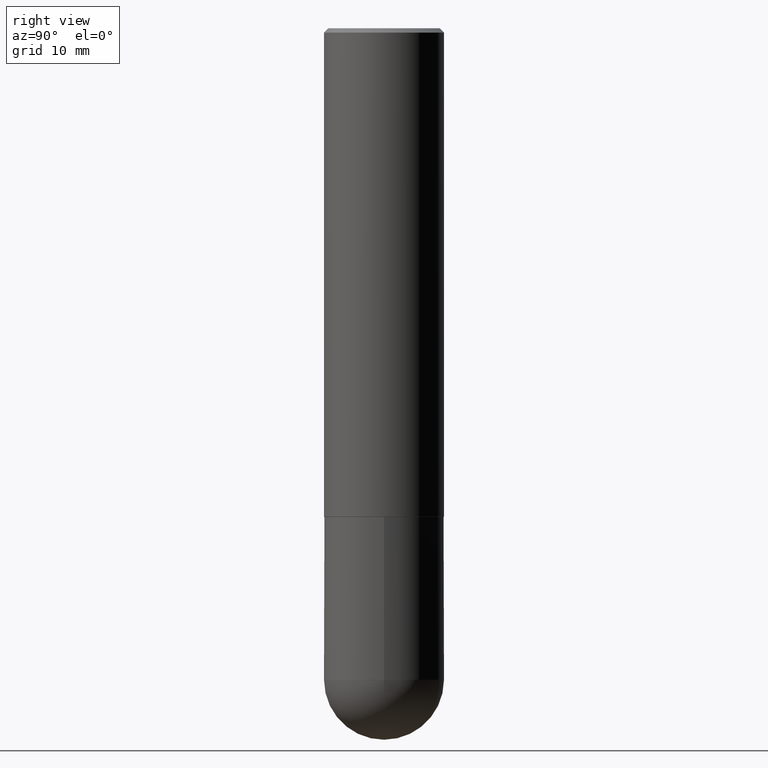
[diagram: clean part render]
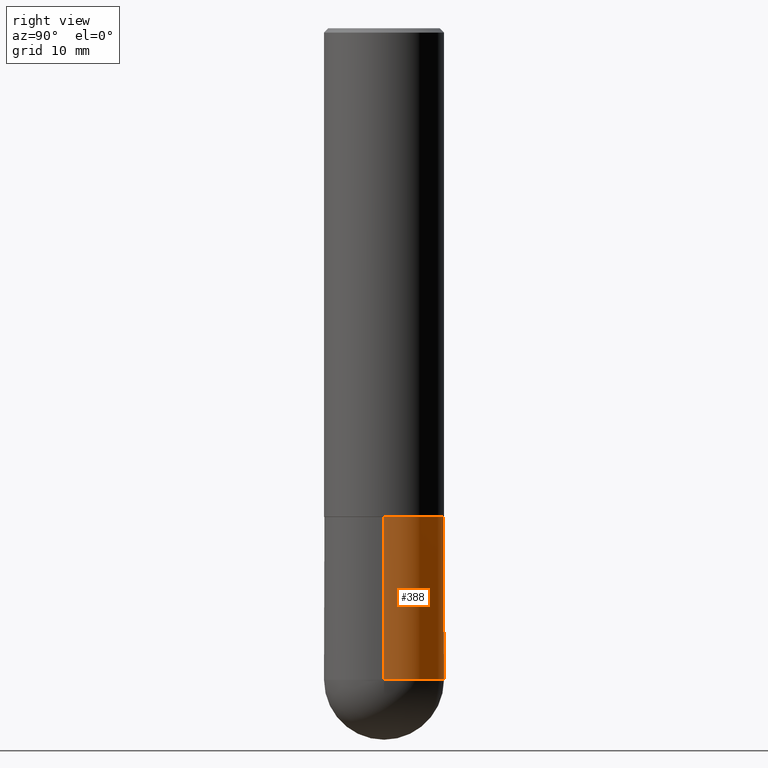
[diagram: same view with one face highlighted and labeled with its STEP entity id]
A machine part, right view. The second image highlights one B-rep face of the part: STEP entity #388.
In plain terms, the highlighted cylindrical surface (partial cylindrical patch) has radius 7.0002 mm, axis along (-0, 0, 1).
Its self-contained STEP definition (entity closure, byte-faithful):
#16 = DIRECTION ( 'NONE',  ( -2.445468806185136597E-29, 3.491481338843145583E-15, 1.000000000000000000 ) ) ;
#20 = ORIENTED_EDGE ( 'NONE', *, *, #136, .T. ) ;
#22 = CARTESIAN_POINT ( 'NONE',  ( 7.317087214986547114E-29, -1.044686131395257581E-14, -2.992100000000000204 ) ) ;
#23 = EDGE_LOOP ( 'NONE', ( #20, #93, #409, #144, #202 ) ) ;
#25 = DIRECTION ( 'NONE',  ( 1.000000000000000000, -6.982962677686264344E-15, 0.000000000000000000 ) ) ;
#30 = CARTESIAN_POINT ( 'NONE',  ( -0.2756000000000000116, -7.182791513470402485E-15, -2.244100000000000428 ) ) ;
#48 = CIRCLE ( 'NONE', #262, 0.2756000000000000671 ) ;
#71 = LINE ( 'NONE', #226, #118 ) ;
#76 = DIRECTION ( 'NONE',  ( -2.445468806185136597E-29, 3.491481338843145583E-15, 1.000000000000000000 ) ) ;
#78 = VECTOR ( 'NONE', #260, 39.37007874015748143 ) ;
#79 = AXIS2_PLACEMENT_3D ( 'NONE', #242, #404, #333 ) ;
#91 = VERTEX_POINT ( 'NONE', #30 ) ;
#93 = ORIENTED_EDGE ( 'NONE', *, *, #150, .T. ) ;
#98 = CIRCLE ( 'NONE', #379, 0.2756000000000000116 ) ;
#106 = DIRECTION ( 'NONE',  ( -2.445468806185136597E-29, 3.491481338843145583E-15, 1.000000000000000000 ) ) ;
#118 = VECTOR ( 'NONE', #354, 39.37007874015748143 ) ;
#136 = EDGE_CURVE ( 'NONE', #244, #319, #48, .T. ) ;
#144 = ORIENTED_EDGE ( 'NONE', *, *, #172, .F. ) ;
#145 = FACE_OUTER_BOUND ( 'NONE', #23, .T. ) ;
#150 = EDGE_CURVE ( 'NONE', #319, #91, #71, .T. ) ;
#164 = CARTESIAN_POINT ( 'NONE',  ( 0.2756000000000000116, -9.759737786468238871E-15, -2.244100000000000428 ) ) ;
#172 = EDGE_CURVE ( 'NONE', #288, #275, #214, .T. ) ;
#173 = AXIS2_PLACEMENT_3D ( 'NONE', #22, #16, #25 ) ;
#197 = DIRECTION ( 'NONE',  ( 1.000000000000000000, -6.982962677686269866E-15, 0.000000000000000000 ) ) ;
#202 = ORIENTED_EDGE ( 'NONE', *, *, #372, .T. ) ;
#214 = LINE ( 'NONE', #382, #78 ) ;
#226 = CARTESIAN_POINT ( 'NONE',  ( -0.2756000000000000671, 1.958255779754836589E-15, -1.355658510874252287E-29 ) ) ;
#242 = CARTESIAN_POINT ( 'NONE',  ( 0.000000000000000000, 0.000000000000000000, 0.000000000000000000 ) ) ;
#244 = VERTEX_POINT ( 'NONE', #358 ) ;
#260 = DIRECTION ( 'NONE',  ( -2.445468806185136877E-29, 3.491481338843145188E-15, 1.000000000000000000 ) ) ;
#262 = AXIS2_PLACEMENT_3D ( 'NONE', #347, #106, #390 ) ;
#263 = CARTESIAN_POINT ( 'NONE',  ( 5.487876547960065873E-29, -7.835233272497903917E-15, -2.244100000000000428 ) ) ;
#272 = CYLINDRICAL_SURFACE ( 'NONE', #79, 0.2756000000000000671 ) ;
#275 = VERTEX_POINT ( 'NONE', #164 ) ;
#288 = VERTEX_POINT ( 'NONE', #391 ) ;
#319 = VERTEX_POINT ( 'NONE', #327 ) ;
#327 = CARTESIAN_POINT ( 'NONE',  ( -0.2756000000000000671, -7.182791513470404062E-15, -2.992100000000000204 ) ) ;
#333 = DIRECTION ( 'NONE',  ( 1.000000000000000000, -6.982962677686267499E-15, 4.876176775795935793E-29 ) ) ;
#347 = CARTESIAN_POINT ( 'NONE',  ( 7.317087214986547114E-29, -1.044686131395257581E-14, -2.992100000000000204 ) ) ;
#349 = CIRCLE ( 'NONE', #173, 0.2756000000000000671 ) ;
#354 = DIRECTION ( 'NONE',  ( -2.445468806185136877E-29, 3.491481338843145188E-15, 1.000000000000000000 ) ) ;
#355 = EDGE_CURVE ( 'NONE', #275, #91, #98, .T. ) ;
#358 = CARTESIAN_POINT ( 'NONE',  ( 1.924504513970407924E-15, 0.2755999999999895200, -2.992100000000001092 ) ) ;
#372 = EDGE_CURVE ( 'NONE', #288, #244, #349, .T. ) ;
#379 = AXIS2_PLACEMENT_3D ( 'NONE', #263, #76, #197 ) ;
#382 = CARTESIAN_POINT ( 'NONE',  ( 0.2756000000000000671, -1.924504513970335743E-15, 1.343874319409360268E-29 ) ) ;
#388 = ADVANCED_FACE ( 'NONE', ( #145 ), #272, .T. ) ;
#390 = DIRECTION ( 'NONE',  ( 1.000000000000000000, -6.982962677686264344E-15, 0.000000000000000000 ) ) ;
#391 = CARTESIAN_POINT ( 'NONE',  ( 0.2756000000000000671, -1.106555180719557718E-14, -2.992100000000000204 ) ) ;
#404 = DIRECTION ( 'NONE',  ( -2.445468806185136597E-29, 3.491481338843145583E-15, 1.000000000000000000 ) ) ;
#409 = ORIENTED_EDGE ( 'NONE', *, *, #355, .F. ) ;